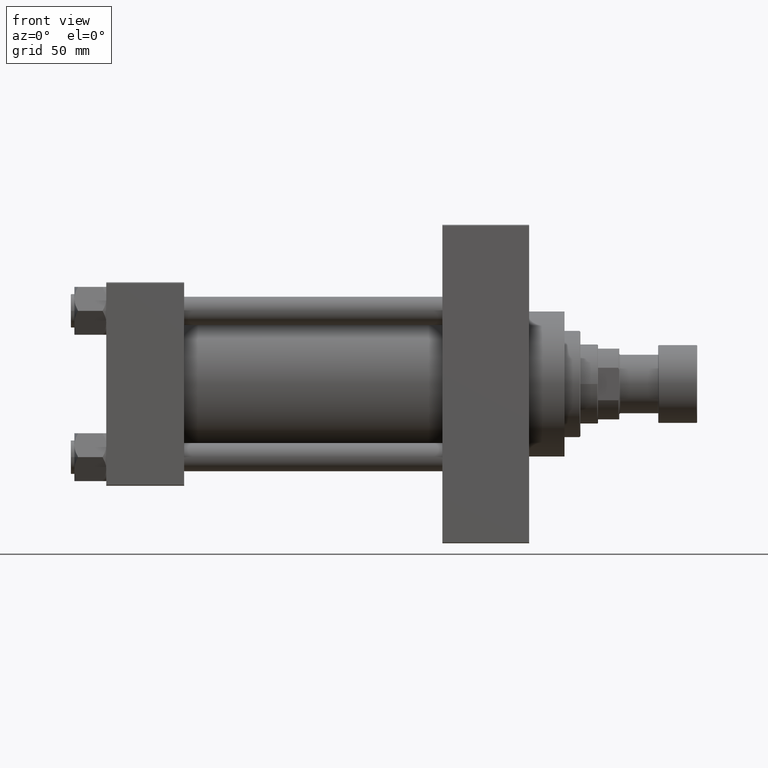
[diagram: clean part render]
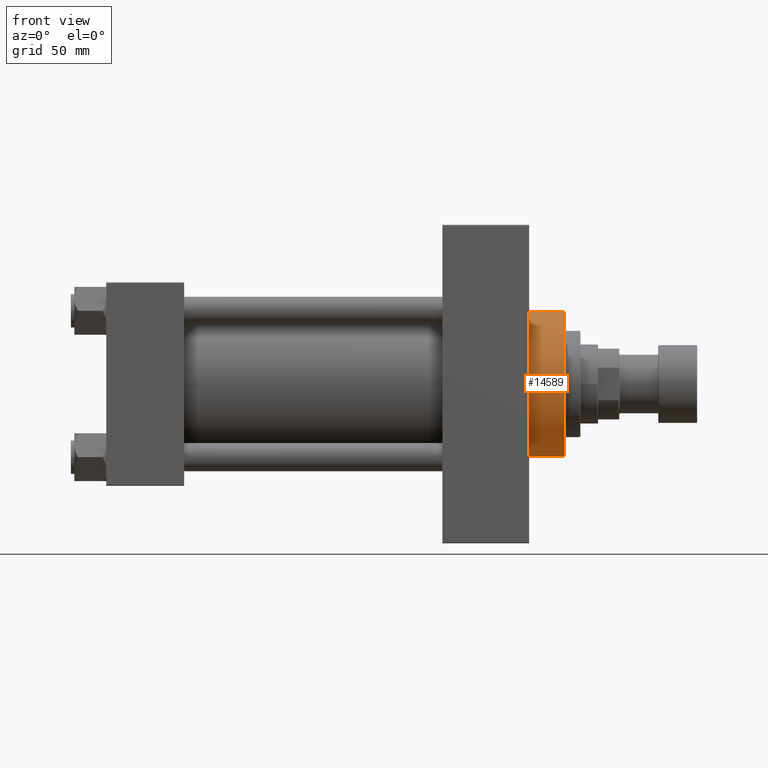
[diagram: same view with one face highlighted and labeled with its STEP entity id]
A machine part, front view. The second image highlights one B-rep face of the part: STEP entity #14589.
In plain terms, the highlighted cylindrical surface (partial cylindrical patch) has radius 41 mm, axis along (-1, -0, -0).
Its self-contained STEP definition (entity closure, byte-faithful):
#801 = CARTESIAN_POINT ( 'NONE',  ( 259.0000000000000000, 0.000000000000000000, 41.00000000000000000 ) ) ;
#1354 = CIRCLE ( 'NONE', #10709, 41.00000000000000000 ) ;
#5735 = ORIENTED_EDGE ( 'NONE', *, *, #46195, .T. ) ;
#6826 = DIRECTION ( 'NONE',  ( -1.000000000000000000, -0.000000000000000000, -0.000000000000000000 ) ) ;
#7349 = CARTESIAN_POINT ( 'NONE',  ( 239.0000000000000000, 5.021051876504148963E-15, -41.00000000000000000 ) ) ;
#8256 = DIRECTION ( 'NONE',  ( -1.000000000000000000, -0.000000000000000000, -0.000000000000000000 ) ) ;
#9030 = CARTESIAN_POINT ( 'NONE',  ( 259.0000000000000000, 0.000000000000000000, 0.000000000000000000 ) ) ;
#9263 = DIRECTION ( 'NONE',  ( 1.000000000000000000, 0.000000000000000000, 0.000000000000000000 ) ) ;
#10709 = AXIS2_PLACEMENT_3D ( 'NONE', #17124, #32007, #46943 ) ;
#11037 = VERTEX_POINT ( 'NONE', #7349 ) ;
#11910 = CARTESIAN_POINT ( 'NONE',  ( 259.0000000000000000, 5.021051876504148963E-15, -41.00000000000000000 ) ) ;
#12892 = ORIENTED_EDGE ( 'NONE', *, *, #39284, .F. ) ;
#13407 = CARTESIAN_POINT ( 'NONE',  ( 239.0000000000000000, 0.000000000000000000, 41.00000000000000000 ) ) ;
#13921 = EDGE_CURVE ( 'NONE', #38058, #11037, #30466, .T. ) ;
#14488 = CIRCLE ( 'NONE', #37113, 41.00000000000000000 ) ;
#14589 = ADVANCED_FACE ( 'NONE', ( #44195 ), #29030, .T. ) ;
#15734 = DIRECTION ( 'NONE',  ( -1.000000000000000000, -0.000000000000000000, -0.000000000000000000 ) ) ;
#15970 = CARTESIAN_POINT ( 'NONE',  ( 259.0000000000000000, 0.000000000000000000, 41.00000000000000000 ) ) ;
#17124 = CARTESIAN_POINT ( 'NONE',  ( 239.0000000000000000, 0.000000000000000000, 0.000000000000000000 ) ) ;
#17675 = CARTESIAN_POINT ( 'NONE',  ( 259.0000000000000000, 5.021051876504148963E-15, -41.00000000000000000 ) ) ;
#18057 = DIRECTION ( 'NONE',  ( 0.000000000000000000, 0.000000000000000000, 1.000000000000000000 ) ) ;
#18914 = LINE ( 'NONE', #15970, #22691 ) ;
#20790 = VERTEX_POINT ( 'NONE', #801 ) ;
#22691 = VECTOR ( 'NONE', #15734, 1000.000000000000000 ) ;
#22693 = EDGE_CURVE ( 'NONE', #20790, #42581, #18914, .T. ) ;
#29030 = CYLINDRICAL_SURFACE ( 'NONE', #43579, 41.00000000000000000 ) ;
#29272 = ORIENTED_EDGE ( 'NONE', *, *, #13921, .F. ) ;
#30326 = ORIENTED_EDGE ( 'NONE', *, *, #22693, .T. ) ;
#30466 = LINE ( 'NONE', #11910, #45162 ) ;
#31715 = DIRECTION ( 'NONE',  ( 0.000000000000000000, 0.000000000000000000, -1.000000000000000000 ) ) ;
#32007 = DIRECTION ( 'NONE',  ( 1.000000000000000000, 0.000000000000000000, 0.000000000000000000 ) ) ;
#36802 = EDGE_LOOP ( 'NONE', ( #29272, #12892, #30326, #5735 ) ) ;
#37113 = AXIS2_PLACEMENT_3D ( 'NONE', #9030, #9263, #31715 ) ;
#38058 = VERTEX_POINT ( 'NONE', #17675 ) ;
#39284 = EDGE_CURVE ( 'NONE', #20790, #38058, #14488, .T. ) ;
#40275 = CARTESIAN_POINT ( 'NONE',  ( 259.0000000000000000, 0.000000000000000000, 0.000000000000000000 ) ) ;
#42581 = VERTEX_POINT ( 'NONE', #13407 ) ;
#43579 = AXIS2_PLACEMENT_3D ( 'NONE', #40275, #6826, #18057 ) ;
#44195 = FACE_OUTER_BOUND ( 'NONE', #36802, .T. ) ;
#45162 = VECTOR ( 'NONE', #8256, 1000.000000000000000 ) ;
#46195 = EDGE_CURVE ( 'NONE', #42581, #11037, #1354, .T. ) ;
#46943 = DIRECTION ( 'NONE',  ( 0.000000000000000000, 0.000000000000000000, -1.000000000000000000 ) ) ;